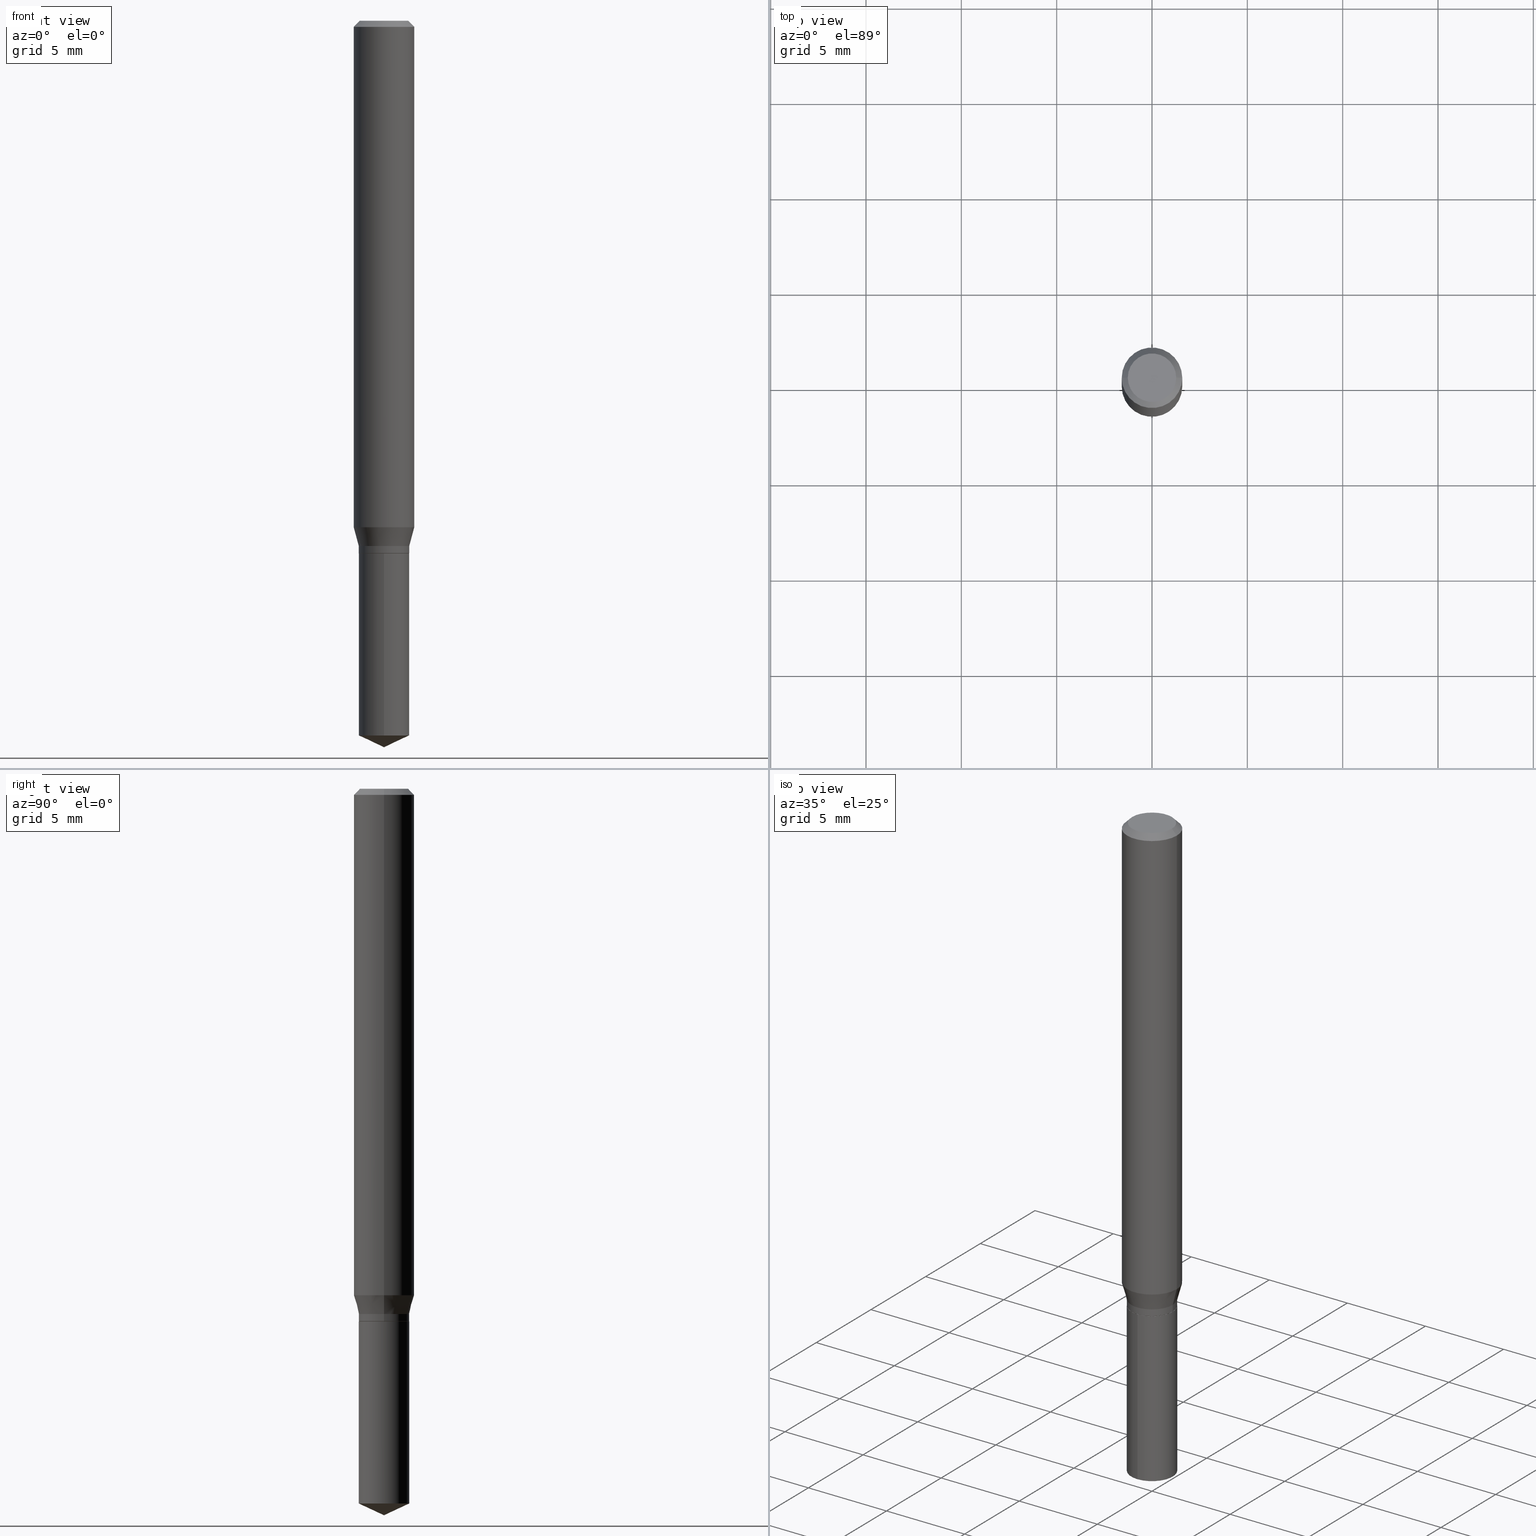
[diagram: canonical four-view strip — front | top / right | iso, engineering-drawing reading convention]
A machine part, canonical four-view strip (front | top / right | iso — engineering-drawing reading convention). The complete STEP part file that produces these views, byte-faithful:
ISO-10303-21;
HEADER;
FILE_DESCRIPTION (( 'STEP AP203' ),
    '1' );
FILE_NAME ('07381.STEP',
    '2024-04-23T20:54:19',
    ( '' ),
    ( '' ),
    'SwSTEP 2.0',
    'SolidWorks 2023',
    '' );
FILE_SCHEMA (( 'CONFIG_CONTROL_DESIGN' ));
ENDSEC;

DATA;
#1 = EDGE_CURVE ( 'NONE', #159, #363, #185, .T. ) ;
#2 = DIRECTION ( 'NONE',  ( -2.445468806185136877E-29, 3.491481338843145188E-15, 1.000000000000000000 ) ) ;
#3 = APPROVAL_PERSON_ORGANIZATION ( #204, #196, #346 ) ;
#4 = DIRECTION ( 'NONE',  ( -1.000000000000000000, 6.982962677686265922E-15, -4.876176775795935793E-29 ) ) ;
#5 = ORIENTED_EDGE ( 'NONE', *, *, #218, .T. ) ;
#6 = PERSON_AND_ORGANIZATION ( #286, #213 ) ;
#7 = CARTESIAN_POINT ( 'NONE',  ( 3.668252923656895710E-29, -5.237152723863177100E-15, -1.500000000000000222 ) ) ;
#8 = CARTESIAN_POINT ( 'NONE',  ( 0.000000000000000000, 0.000000000000000000, 0.000000000000000000 ) ) ;
#9 = AXIS2_PLACEMENT_3D ( 'NONE', #8, #160, #309 ) ;
#10 = ORIENTED_EDGE ( 'NONE', *, *, #23, .T. ) ;
#11 = AXIS2_PLACEMENT_3D ( 'NONE', #260, #301, #4 ) ;
#12 = CARTESIAN_POINT ( 'NONE',  ( -0.05215000000000000191, -3.415614327142614760E-15, -1.084400000000000031 ) ) ;
#13 = VERTEX_POINT ( 'NONE', #176 ) ;
#14 = LINE ( 'NONE', #7, #141 ) ;
#15 = ADVANCED_FACE ( 'NONE', ( #369 ), #424, .T. ) ;
#16 = ORIENTED_EDGE ( 'NONE', *, *, #118, .T. ) ;
#17 = DIRECTION ( 'NONE',  ( -2.445468806185136597E-29, 3.491481338843145583E-15, 1.000000000000000000 ) ) ;
#18 = FACE_OUTER_BOUND ( 'NONE', #429, .T. ) ;
#19 = AXIS2_PLACEMENT_3D ( 'NONE', #209, #100, #441 ) ;
#20 = CARTESIAN_POINT ( 'NONE',  ( -9.260740279983036507E-28, 1.322265303911854087E-13, 37.87007874015748143 ) ) ;
#21 = CALENDAR_DATE ( 2024, 23, 4 ) ;
#22 = ORIENTED_EDGE ( 'NONE', *, *, #384, .F. ) ;
#23 = EDGE_CURVE ( 'NONE', #352, #296, #408, .T. ) ;
#24 = CARTESIAN_POINT ( 'NONE',  ( 3.705480366989282030E-16, 0.05214999999999482549, -1.475682055627217437 ) ) ;
#25 = ORIENTED_EDGE ( 'NONE', *, *, #178, .T. ) ;
#26 = DIRECTION ( 'NONE',  ( -2.445399690415121530E-29, 3.491580316559632610E-15, 1.000000000000000000 ) ) ;
#27 = APPLICATION_CONTEXT ( 'configuration controlled 3d designs of mechanical parts and assemblies' ) ;
#28 = DIRECTION ( 'NONE',  ( -2.445399690415121530E-29, 3.491580316559632610E-15, 1.000000000000000000 ) ) ;
#29 = VECTOR ( 'NONE', #164, 39.37007874015748854 ) ;
#30 = LOCAL_TIME ( 16, 54, 19.00000000000000000, #458 ) ;
#31 = CYLINDRICAL_SURFACE ( 'NONE', #443, 0.06250000000000006939 ) ;
#32 = DIRECTION ( 'NONE',  ( 2.445468806185136597E-29, -3.491481338843145583E-15, -1.000000000000000000 ) ) ;
#33 = ADVANCED_FACE ( 'NONE', ( #18 ), #311, .T. ) ;
#34 = DIRECTION ( 'NONE',  ( -2.445468806185136597E-29, 3.491481338843145583E-15, 1.000000000000000000 ) ) ;
#35 = CARTESIAN_POINT ( 'NONE',  ( 2.651866373427162025E-29, -3.786162363841507612E-15, -1.084400000000000031 ) ) ;
#36 = ADVANCED_FACE ( 'NONE', ( #170 ), #445, .T. ) ;
#37 = DIRECTION ( 'NONE',  ( 1.000000000000000000, -6.982962677686268288E-15, 0.000000000000000000 ) ) ;
#38 = PERSON_AND_ORGANIZATION_ROLE ( 'classification_officer' ) ;
#39 = MECHANICAL_CONTEXT ( 'NONE', #419, 'mechanical' ) ;
#40 = CONICAL_SURFACE ( 'NONE', #228, 0.05164999999999999453, 0.7853981633974141952 ) ;
#41 = CC_DESIGN_SECURITY_CLASSIFICATION ( #246, ( #187 ) ) ;
#42 = EDGE_LOOP ( 'NONE', ( #138, #388, #165, #259 ) ) ;
#43 = PERSON_AND_ORGANIZATION ( #286, #213 ) ;
#44 = CARTESIAN_POINT ( 'NONE',  ( 2.690015686803650369E-29, -3.840629472727460101E-15, -1.100000000000000089 ) ) ;
#45 = ORIENTED_EDGE ( 'NONE', *, *, #114, .F. ) ;
#46 = FACE_OUTER_BOUND ( 'NONE', #253, .T. ) ;
#47 = EDGE_LOOP ( 'NONE', ( #285, #78, #278, #174 ) ) ;
#48 = DIRECTION ( 'NONE',  ( 1.000000000000000000, -6.982962677686269077E-15, 0.000000000000000000 ) ) ;
#49 = CIRCLE ( 'NONE', #394, 0.06250000000000000000 ) ;
#50 = ORIENTED_EDGE ( 'NONE', *, *, #446, .F. ) ;
#51 =( GEOMETRIC_REPRESENTATION_CONTEXT ( 3 ) GLOBAL_UNCERTAINTY_ASSIGNED_CONTEXT ( ( #354 ) ) GLOBAL_UNIT_ASSIGNED_CONTEXT ( ( #269, #341, #265 ) ) REPRESENTATION_CONTEXT ( 'NONE', 'WORKASPACE' ) );
#52 = EDGE_CURVE ( 'NONE', #135, #433, #148, .T. ) ;
#53 = CARTESIAN_POINT ( 'NONE',  ( 0.04999999999999999584, -4.077247707424184705E-16, -1.592040838888913461E-18 ) ) ;
#54 = DIRECTION ( 'NONE',  ( 1.000000000000000000, -6.982962677686268288E-15, 0.000000000000000000 ) ) ;
#55 = ORIENTED_EDGE ( 'NONE', *, *, #333, .F. ) ;
#56 = CYLINDRICAL_SURFACE ( 'NONE', #60, 0.05215000000000000191 ) ;
#57 = ORIENTED_EDGE ( 'NONE', *, *, #178, .F. ) ;
#58 = EDGE_CURVE ( 'NONE', #135, #363, #277, .T. ) ;
#59 = APPROVAL_STATUS ( 'not_yet_approved' ) ;
#60 = AXIS2_PLACEMENT_3D ( 'NONE', #410, #211, #252 ) ;
#61 = DIRECTION ( 'NONE',  ( -6.982962677686266711E-15, -1.000000000000000000, 2.619221470435534958E-15 ) ) ;
#62 = CARTESIAN_POINT ( 'NONE',  ( 2.690015686803650369E-29, -3.840629472727460101E-15, -1.100000000000000089 ) ) ;
#63 = COORDINATED_UNIVERSAL_TIME_OFFSET ( 5, 0, .BEHIND. ) ;
#64 = DIRECTION ( 'NONE',  ( 0.2588190451025216277, 1.565188264969619995E-15, 0.9659258262890679791 ) ) ;
#65 = CARTESIAN_POINT ( 'NONE',  ( 2.690015686803650369E-29, -3.840629472727460101E-15, -1.100000000000000089 ) ) ;
#66 = CARTESIAN_POINT ( 'NONE',  ( 3.608708469328962837E-29, -5.152353543440113099E-15, -1.475682055627217215 ) ) ;
#67 = AXIS2_PLACEMENT_3D ( 'NONE', #65, #95, #274 ) ;
#68 = CIRCLE ( 'NONE', #295, 0.04999999999999999584 ) ;
#69 = CARTESIAN_POINT ( 'NONE',  ( 0.05215000000000000191, -4.203045235699377653E-15, -1.099499999999999922 ) ) ;
#70 = ADVANCED_FACE ( 'NONE', ( #389 ), #212, .T. ) ;
#71 = CARTESIAN_POINT ( 'NONE',  ( 3.893286209682126177E-47, -5.558580879666067980E-33, -1.592040838891559689E-18 ) ) ;
#72 = DIRECTION ( 'NONE',  ( 1.000000000000000000, -6.982962677686268288E-15, 0.000000000000000000 ) ) ;
#73 = EDGE_CURVE ( 'NONE', #327, #247, #207, .T. ) ;
#74 = VECTOR ( 'NONE', #113, 39.37007874015748143 ) ;
#75 = PERSON_AND_ORGANIZATION ( #286, #213 ) ;
#76 = DIRECTION ( 'NONE',  ( -2.445468806185136597E-29, 3.491481338843145583E-15, 1.000000000000000000 ) ) ;
#77 = DIRECTION ( 'NONE',  ( 0.000000000000000000, 0.000000000000000000, 1.000000000000000000 ) ) ;
#78 = ORIENTED_EDGE ( 'NONE', *, *, #73, .T. ) ;
#79 = PERSON_AND_ORGANIZATION ( #286, #213 ) ;
#80 = VECTOR ( 'NONE', #406, 39.37007874015748143 ) ;
#81 = CARTESIAN_POINT ( 'NONE',  ( 2.557405920255531666E-29, -3.651297871326509428E-15, -1.045773274141661879 ) ) ;
#82 = EDGE_CURVE ( 'NONE', #247, #125, #336, .T. ) ;
#83 = AXIS2_PLACEMENT_3D ( 'NONE', #20, #26, #143 ) ;
#84 = EDGE_LOOP ( 'NONE', ( #342, #214, #202, #216 ) ) ;
#85 = DIRECTION ( 'NONE',  ( 1.000000000000000000, -6.982962677686269077E-15, 0.000000000000000000 ) ) ;
#86 = ORIENTED_EDGE ( 'NONE', *, *, #257, .F. ) ;
#87 = DIRECTION ( 'NONE',  ( 1.000000000000000000, -6.982962677686264344E-15, 0.000000000000000000 ) ) ;
#88 = DESIGN_CONTEXT ( 'detailed design', #27, 'design' ) ;
#89 = ORIENTED_EDGE ( 'NONE', *, *, #350, .F. ) ;
#90 = ADVANCED_FACE ( 'NONE', ( #46 ), #403, .T. ) ;
#91 = DIRECTION ( 'NONE',  ( -2.445468806185136597E-29, 3.491481338843145583E-15, 1.000000000000000000 ) ) ;
#92 = CIRCLE ( 'NONE', #482, 0.06250000000000012490 ) ;
#93 = EDGE_LOOP ( 'NONE', ( #86, #468, #323, #314 ) ) ;
#94 = AXIS2_PLACEMENT_3D ( 'NONE', #380, #153, #112 ) ;
#95 = DIRECTION ( 'NONE',  ( -2.445399690415121530E-29, 3.491580316559632610E-15, 1.000000000000000000 ) ) ;
#96 = ORIENTED_EDGE ( 'NONE', *, *, #162, .F. ) ;
#97 = PERSON_AND_ORGANIZATION ( #286, #213 ) ;
#98 = LINE ( 'NONE', #215, #379 ) ;
#99 = DATE_AND_TIME ( #117, #30 ) ;
#100 = DIRECTION ( 'NONE',  ( -2.445468806185136597E-29, 3.491481338843145583E-15, 1.000000000000000000 ) ) ;
#101 = DATE_AND_TIME ( #206, #452 ) ;
#102 = FACE_OUTER_BOUND ( 'NONE', #220, .T. ) ;
#103 = CC_DESIGN_PERSON_AND_ORGANIZATION_ASSIGNMENT ( #75, #231, ( #187 ) ) ;
#104 = CARTESIAN_POINT ( 'NONE',  ( -9.260740279983036507E-28, 1.322265303911854087E-13, 37.87007874015748143 ) ) ;
#105 = AXIS2_PLACEMENT_3D ( 'NONE', #169, #17, #343 ) ;
#106 = CONICAL_SURFACE ( 'NONE', #435, 0.05215000000000000191, 0.2617993877991502960 ) ;
#107 = FACE_OUTER_BOUND ( 'NONE', #233, .T. ) ;
#108 = EDGE_LOOP ( 'NONE', ( #163, #439, #10, #478 ) ) ;
#109 = PLANE ( 'NONE',  #11 ) ;
#110 = EDGE_CURVE ( 'NONE', #251, #352, #418, .T. ) ;
#111 = FACE_OUTER_BOUND ( 'NONE', #431, .T. ) ;
#112 = DIRECTION ( 'NONE',  ( 1.000000000000000000, -6.982962677686266711E-15, 4.876176775795935793E-29 ) ) ;
#113 = DIRECTION ( 'NONE',  ( -2.445468806185136877E-29, 3.491481338843145188E-15, 1.000000000000000000 ) ) ;
#114 = EDGE_CURVE ( 'NONE', #13, #327, #14, .T. ) ;
#115 = DIRECTION ( 'NONE',  ( 1.000000000000000000, -6.982962677686265922E-15, 4.875957971899673662E-29 ) ) ;
#116 = CONICAL_SURFACE ( 'NONE', #132, 0.06250000000000000000, 0.7853981633974449483 ) ;
#117 = CALENDAR_DATE ( 2024, 23, 4 ) ;
#118 = EDGE_CURVE ( 'NONE', #125, #247, #120, .T. ) ;
#119 = ORIENTED_EDGE ( 'NONE', *, *, #1, .F. ) ;
#120 = CIRCLE ( 'NONE', #462, 0.05215000000000000191 ) ;
#121 = CARTESIAN_POINT ( 'NONE',  ( 2.690015686803650369E-29, -3.840629472727460101E-15, -1.100000000000000089 ) ) ;
#122 = ORIENTED_EDGE ( 'NONE', *, *, #73, .F. ) ;
#123 = DIRECTION ( 'NONE',  ( -2.445468806185136597E-29, 3.491481338843145583E-15, 1.000000000000000000 ) ) ;
#124 = ADVANCED_FACE ( 'NONE', ( #239 ), #40, .T. ) ;
#125 = VERTEX_POINT ( 'NONE', #387 ) ;
#126 = DIRECTION ( 'NONE',  ( -0.2588190451025216277, 5.211531920934551831E-15, 0.9659258262890679791 ) ) ;
#127 = ORIENTED_EDGE ( 'NONE', *, *, #52, .F. ) ;
#128 = DIRECTION ( 'NONE',  ( 6.439704144417036664E-15, 0.9063077870366530453, 0.4226182617406927244 ) ) ;
#129 = SHAPE_DEFINITION_REPRESENTATION ( #417, #227 ) ;
#130 = AXIS2_PLACEMENT_3D ( 'NONE', #242, #166, #48 ) ;
#131 = ORIENTED_EDGE ( 'NONE', *, *, #23, .F. ) ;
#132 = AXIS2_PLACEMENT_3D ( 'NONE', #330, #32, #484 ) ;
#133 = APPROVAL_DATE_TIME ( #426, #157 ) ;
#134 = CARTESIAN_POINT ( 'NONE',  ( 3.705480366989190325E-16, 0.05214999999999615776, -1.100000000000000089 ) ) ;
#135 = VERTEX_POINT ( 'NONE', #194 ) ;
#136 = EDGE_CURVE ( 'NONE', #363, #159, #306, .T. ) ;
#137 = CARTESIAN_POINT ( 'NONE',  ( -0.05215000000000000191, -3.441975011250880253E-15, -1.084400000000000031 ) ) ;
#138 = ORIENTED_EDGE ( 'NONE', *, *, #136, .T. ) ;
#139 = FACE_OUTER_BOUND ( 'NONE', #393, .T. ) ;
#140 = ORIENTED_EDGE ( 'NONE', *, *, #172, .F. ) ;
#141 = VECTOR ( 'NONE', #128, 39.37007874015748854 ) ;
#142 = VECTOR ( 'NONE', #375, 39.37007874015748143 ) ;
#143 = DIRECTION ( 'NONE',  ( -6.982962677686267499E-15, -1.000000000000000000, 3.520397390770433360E-15 ) ) ;
#144 = ORIENTED_EDGE ( 'NONE', *, *, #1, .T. ) ;
#145 = EDGE_CURVE ( 'NONE', #291, #296, #244, .T. ) ;
#146 = LINE ( 'NONE', #365, #181 ) ;
#147 = DIRECTION ( 'NONE',  ( -2.445399690415121810E-29, 3.491580316559632610E-15, 1.000000000000000000 ) ) ;
#148 = CIRCLE ( 'NONE', #130, 0.05164999999999999453 ) ;
#149 = AXIS2_PLACEMENT_3D ( 'NONE', #421, #77, #383 ) ;
#150 = ADVANCED_FACE ( 'NONE', ( #467 ), #322, .T. ) ;
#151 = CARTESIAN_POINT ( 'NONE',  ( -0.05164999999999999453, -3.470984922533256947E-15, -1.100000000000000089 ) ) ;
#152 =( LENGTH_UNIT ( ) NAMED_UNIT ( * ) SI_UNIT ( $, .METRE. ) );
#153 = DIRECTION ( 'NONE',  ( -2.445468806185136597E-29, 3.491481338843145583E-15, 1.000000000000000000 ) ) ;
#154 = APPLICATION_PROTOCOL_DEFINITION ( 'international standard', 'config_control_design', 1994, #419 ) ;
#155 = VECTOR ( 'NONE', #177, 39.37007874015748143 ) ;
#156 = AXIS2_PLACEMENT_3D ( 'NONE', #230, #415, #456 ) ;
#157 = APPROVAL ( #59, 'UNSPECIFIED' ) ;
#158 = APPROVAL_STATUS ( 'not_yet_approved' ) ;
#159 = VERTEX_POINT ( 'NONE', #461 ) ;
#160 = DIRECTION ( 'NONE',  ( -2.445468806185136597E-29, 3.491481338843145583E-15, 1.000000000000000000 ) ) ;
#161 = ORIENTED_EDGE ( 'NONE', *, *, #114, .T. ) ;
#162 = EDGE_CURVE ( 'NONE', #433, #135, #348, .T. ) ;
#163 = ORIENTED_EDGE ( 'NONE', *, *, #290, .F. ) ;
#164 = DIRECTION ( 'NONE',  ( 0.7071067811865232589, -2.468850131082003836E-15, 0.7071067811865715536 ) ) ;
#165 = ORIENTED_EDGE ( 'NONE', *, *, #218, .F. ) ;
#166 = DIRECTION ( 'NONE',  ( -2.445468806185136597E-29, 3.491481338843145583E-15, 1.000000000000000000 ) ) ;
#167 = ORIENTED_EDGE ( 'NONE', *, *, #162, .T. ) ;
#168 = APPROVAL_ROLE ( '' ) ;
#169 = CARTESIAN_POINT ( 'NONE',  ( 3.056836007731442729E-31, -4.364351673553962300E-17, -0.01250000000000008916 ) ) ;
#170 = FACE_OUTER_BOUND ( 'NONE', #386, .T. ) ;
#171 = LOCAL_TIME ( 16, 54, 19.00000000000000000, #470 ) ;
#172 = EDGE_CURVE ( 'NONE', #352, #251, #92, .T. ) ;
#173 = DIRECTION ( 'NONE',  ( -0.7071067811865232589, 7.493145998870265808E-15, 0.7071067811865715536 ) ) ;
#174 = ORIENTED_EDGE ( 'NONE', *, *, #266, .F. ) ;
#175 = FACE_OUTER_BOUND ( 'NONE', #466, .T. ) ;
#176 = CARTESIAN_POINT ( 'NONE',  ( 3.668099535622682715E-29, -5.237370474839449507E-15, -1.500000000000000222 ) ) ;
#177 = DIRECTION ( 'NONE',  ( -0.7071067811865451302, 2.468850131082231817E-15, -0.7071067811865499042 ) ) ;
#178 = EDGE_CURVE ( 'NONE', #357, #251, #351, .T. ) ;
#179 = ORIENTED_EDGE ( 'NONE', *, *, #58, .T. ) ;
#180 = CIRCLE ( 'NONE', #372, 0.05215000000000000191 ) ;
#181 = VECTOR ( 'NONE', #362, 39.37007874015748143 ) ;
#182 = DIRECTION ( 'NONE',  ( 1.000000000000000000, -6.982962677686268288E-15, 0.000000000000000000 ) ) ;
#183 = DIRECTION ( 'NONE',  ( -2.445399690415121530E-29, 3.491580316559632610E-15, 1.000000000000000000 ) ) ;
#184 = LINE ( 'NONE', #378, #74 ) ;
#185 = CIRCLE ( 'NONE', #19, 0.05215000000000000191 ) ;
#186 = EDGE_CURVE ( 'NONE', #296, #291, #49, .T. ) ;
#187 = PRODUCT_DEFINITION_FORMATION_WITH_SPECIFIED_SOURCE ( 'ANY', '', #449, .NOT_KNOWN. ) ;
#188 = CYLINDRICAL_SURFACE ( 'NONE', #94, 0.05215000000000000191 ) ;
#189 = CARTESIAN_POINT ( 'NONE',  ( -3.641615036413025703E-16, -0.05215000000000513669, -1.475682055627216993 ) ) ;
#190 = PERSON_AND_ORGANIZATION ( #286, #213 ) ;
#191 = CC_DESIGN_DATE_AND_TIME_ASSIGNMENT ( #101, #402, ( #281 ) ) ;
#192 = LINE ( 'NONE', #340, #142 ) ;
#193 = VERTEX_POINT ( 'NONE', #53 ) ;
#194 = CARTESIAN_POINT ( 'NONE',  ( 0.05164999999999999453, -4.201299495029956149E-15, -1.100000000000000089 ) ) ;
#195 = EDGE_LOOP ( 'NONE', ( #16, #270 ) ) ;
#196 = APPROVAL ( #355, 'UNSPECIFIED' ) ;
#197 = DIRECTION ( 'NONE',  ( -1.000000000000000000, 6.982962677686266711E-15, 0.000000000000000000 ) ) ;
#198 = ORIENTED_EDGE ( 'NONE', *, *, #350, .T. ) ;
#199 = AXIS2_PLACEMENT_3D ( 'NONE', #121, #313, #85 ) ;
#200 = DIRECTION ( 'NONE',  ( -6.982962677686266711E-15, -1.000000000000000000, 2.619221470435534958E-15 ) ) ;
#201 = CIRCLE ( 'NONE', #255, 0.05215000000000000191 ) ;
#202 = ORIENTED_EDGE ( 'NONE', *, *, #136, .F. ) ;
#203 = CARTESIAN_POINT ( 'NONE',  ( 2.651866373427162025E-29, -3.786162363841507612E-15, -1.084400000000000031 ) ) ;
#204 = PERSON_AND_ORGANIZATION ( #286, #213 ) ;
#205 = ORIENTED_EDGE ( 'NONE', *, *, #110, .F. ) ;
#206 = CALENDAR_DATE ( 2024, 23, 4 ) ;
#207 = LINE ( 'NONE', #134, #451 ) ;
#208 = CC_DESIGN_PERSON_AND_ORGANIZATION_ASSIGNMENT ( #97, #423, ( #187 ) ) ;
#209 = CARTESIAN_POINT ( 'NONE',  ( 2.688792952400557567E-29, -3.838883732058038598E-15, -1.099499999999999922 ) ) ;
#210 = MANIFOLD_SOLID_BREP ( 'Body-Move/Copy2[2]', #442 ) ;
#211 = DIRECTION ( 'NONE',  ( -2.445468806185136597E-29, 3.491481338843145583E-15, 1.000000000000000000 ) ) ;
#212 = CONICAL_SURFACE ( 'NONE', #302, 0.06250000000000000000, 0.7853981633974449483 ) ;
#213 = ORGANIZATION ( 'UNSPECIFIED', 'UNSPECIFIED', '' ) ;
#214 = ORIENTED_EDGE ( 'NONE', *, *, #338, .T. ) ;
#215 = CARTESIAN_POINT ( 'NONE',  ( 0.05215000000000000191, -4.150323867482845879E-15, -1.084400000000000031 ) ) ;
#216 = ORIENTED_EDGE ( 'NONE', *, *, #58, .F. ) ;
#217 = PERSON_AND_ORGANIZATION_ROLE ( 'creator' ) ;
#218 = EDGE_CURVE ( 'NONE', #463, #357, #180, .T. ) ;
#219 = CARTESIAN_POINT ( 'NONE',  ( 0.000000000000000000, 0.000000000000000000, 0.000000000000000000 ) ) ;
#220 = EDGE_LOOP ( 'NONE', ( #425, #161, #55 ) ) ;
#221 = LINE ( 'NONE', #486, #229 ) ;
#222 = APPROVAL_PERSON_ORGANIZATION ( #43, #317, #324 ) ;
#223 = CARTESIAN_POINT ( 'NONE',  ( -0.04999999999999999584, 3.709698922520826725E-16, -1.592040838894077649E-18 ) ) ;
#224 = DIRECTION ( 'NONE',  ( -2.445468806185136597E-29, 3.491481338843145583E-15, 1.000000000000000000 ) ) ;
#225 = EDGE_CURVE ( 'NONE', #320, #291, #289, .T. ) ;
#226 = PLANE ( 'NONE',  #156 ) ;
#227 = ADVANCED_BREP_SHAPE_REPRESENTATION ( '07381', ( #376, #210, #149 ), #51 ) ;
#228 = AXIS2_PLACEMENT_3D ( 'NONE', #283, #436, #250 ) ;
#229 = VECTOR ( 'NONE', #147, 39.37007874015748143 ) ;
#230 = CARTESIAN_POINT ( 'NONE',  ( 2.690015686803650369E-29, -3.840629472727460101E-15, -1.100000000000000089 ) ) ;
#231 = PERSON_AND_ORGANIZATION_ROLE ( 'design_supplier' ) ;
#232 = FACE_OUTER_BOUND ( 'NONE', #195, .T. ) ;
#233 = EDGE_LOOP ( 'NONE', ( #288, #198 ) ) ;
#234 = CALENDAR_DATE ( 2024, 23, 4 ) ;
#235 = AXIS2_PLACEMENT_3D ( 'NONE', #454, #76, #37 ) ;
#236 = DIRECTION ( 'NONE',  ( -2.445399690415121530E-29, 3.491580316559632610E-15, 1.000000000000000000 ) ) ;
#237 = ADVANCED_FACE ( 'NONE', ( #102 ), #453, .T. ) ;
#238 = ORIENTED_EDGE ( 'NONE', *, *, #473, .T. ) ;
#239 = FACE_OUTER_BOUND ( 'NONE', #84, .T. ) ;
#240 = APPROVAL_DATE_TIME ( #326, #196 ) ;
#241 = ORIENTED_EDGE ( 'NONE', *, *, #460, .F. ) ;
#242 = CARTESIAN_POINT ( 'NONE',  ( 2.690015686803650369E-29, -3.840629472727460101E-15, -1.100000000000000089 ) ) ;
#243 = ORIENTED_EDGE ( 'NONE', *, *, #480, .T. ) ;
#244 = CIRCLE ( 'NONE', #105, 0.06250000000000000000 ) ;
#245 = CARTESIAN_POINT ( 'NONE',  ( 3.056836007731442729E-31, -4.364351673553962300E-17, -0.01250000000000008916 ) ) ;
#246 = SECURITY_CLASSIFICATION ( '', '', #381 ) ;
#247 = VERTEX_POINT ( 'NONE', #407 ) ;
#248 = APPLICATION_PROTOCOL_DEFINITION ( 'international standard', 'config_control_design', 1994, #27 ) ;
#249 = CC_DESIGN_PERSON_AND_ORGANIZATION_ASSIGNMENT ( #422, #217, ( #281 ) ) ;
#250 = DIRECTION ( 'NONE',  ( 1.000000000000000000, -6.982962677686269077E-15, 0.000000000000000000 ) ) ;
#251 = VERTEX_POINT ( 'NONE', #332 ) ;
#252 = DIRECTION ( 'NONE',  ( 1.000000000000000000, -6.982962677686266711E-15, 4.876176775795935793E-29 ) ) ;
#253 = EDGE_LOOP ( 'NONE', ( #5, #25, #140, #276 ) ) ;
#254 = DIRECTION ( 'NONE',  ( -2.445399690415121530E-29, 3.491580316559632610E-15, 1.000000000000000000 ) ) ;
#255 = AXIS2_PLACEMENT_3D ( 'NONE', #447, #183, #444 ) ;
#256 = DIRECTION ( 'NONE',  ( -6.982962677686267499E-15, -1.000000000000000000, 3.520397390770433360E-15 ) ) ;
#257 = EDGE_CURVE ( 'NONE', #193, #296, #258, .T. ) ;
#258 = LINE ( 'NONE', #293, #321 ) ;
#259 = ORIENTED_EDGE ( 'NONE', *, *, #473, .F. ) ;
#260 = CARTESIAN_POINT ( 'NONE',  ( 1.946643104841063088E-47, -2.779290439833033990E-33, -7.960204194457798443E-19 ) ) ;
#261 = DIRECTION ( 'NONE',  ( 1.000000000000000000, -6.982962677686266711E-15, 4.876176775795935793E-29 ) ) ;
#262 = AXIS2_PLACEMENT_3D ( 'NONE', #335, #263, #450 ) ;
#263 = DIRECTION ( 'NONE',  ( -2.438088387897960049E-29, 3.491481338843145188E-15, 1.000000000000000000 ) ) ;
#264 = EDGE_CURVE ( 'NONE', #463, #352, #98, .T. ) ;
#265 =( NAMED_UNIT ( * ) SI_UNIT ( $, .STERADIAN. ) SOLID_ANGLE_UNIT ( ) );
#266 = EDGE_CURVE ( 'NONE', #476, #125, #221, .T. ) ;
#267 = AXIS2_PLACEMENT_3D ( 'NONE', #432, #397, #54 ) ;
#268 = CARTESIAN_POINT ( 'NONE',  ( 0.05215000000000000191, -4.150323867482845879E-15, -1.084400000000000031 ) ) ;
#269 =( CONVERSION_BASED_UNIT ( 'INCH', #303 ) LENGTH_UNIT ( ) NAMED_UNIT ( #356 ) );
#270 = ORIENTED_EDGE ( 'NONE', *, *, #82, .T. ) ;
#271 = AXIS2_PLACEMENT_3D ( 'NONE', #81, #91, #359 ) ;
#272 = COORDINATED_UNIVERSAL_TIME_OFFSET ( 5, 0, .BEHIND. ) ;
#273 = AXIS2_PLACEMENT_3D ( 'NONE', #405, #374, #61 ) ;
#274 = DIRECTION ( 'NONE',  ( -6.982962677686266711E-15, -1.000000000000000000, 2.619221470435534958E-15 ) ) ;
#275 = ADVANCED_FACE ( 'NONE', ( #175 ), #56, .T. ) ;
#276 = ORIENTED_EDGE ( 'NONE', *, *, #264, .F. ) ;
#277 = LINE ( 'NONE', #287, #29 ) ;
#278 = ORIENTED_EDGE ( 'NONE', *, *, #118, .F. ) ;
#279 = DIRECTION ( 'NONE',  ( -2.445468806185136597E-29, 3.491481338843145583E-15, 1.000000000000000000 ) ) ;
#280 = EDGE_LOOP ( 'NONE', ( #45, #243, #22 ) ) ;
#281 = PRODUCT_DEFINITION ( 'UNKNOWN', '', #187, #88 ) ;
#282 = CLOSED_SHELL ( 'NONE', ( #364, #237, #15, #36, #455 ) ) ;
#283 = CARTESIAN_POINT ( 'NONE',  ( 2.690015686803650369E-29, -3.840629472727460101E-15, -1.100000000000000089 ) ) ;
#284 = CC_DESIGN_APPROVAL ( #196, ( #246 ) ) ;
#285 = ORIENTED_EDGE ( 'NONE', *, *, #333, .T. ) ;
#286 = PERSON ( 'UNSPECIFIED', 'UNSPECIFIED', 'UNSPECIFIED', ('UNSPECIFIED'), ('UNSPECIFIED'), ('UNSPECIFIED') ) ;
#287 = CARTESIAN_POINT ( 'NONE',  ( 0.05164999999999999453, -4.201299495029956149E-15, -1.100000000000000089 ) ) ;
#288 = ORIENTED_EDGE ( 'NONE', *, *, #459, .T. ) ;
#289 = LINE ( 'NONE', #399, #155 ) ;
#290 = EDGE_CURVE ( 'NONE', #251, #291, #146, .T. ) ;
#291 = VERTEX_POINT ( 'NONE', #297 ) ;
#292 = APPROVAL_DATE_TIME ( #361, #317 ) ;
#293 = CARTESIAN_POINT ( 'NONE',  ( 0.06250000000000000000, -4.724246415962603826E-16, -0.01250000000000008916 ) ) ;
#294 = AXIS2_PLACEMENT_3D ( 'NONE', #62, #366, #329 ) ;
#295 = AXIS2_PLACEMENT_3D ( 'NONE', #71, #224, #115 ) ;
#296 = VERTEX_POINT ( 'NONE', #412 ) ;
#297 = CARTESIAN_POINT ( 'NONE',  ( -0.06250000000000000000, -1.403381484180960498E-15, -0.01250000000000008916 ) ) ;
#298 = EDGE_LOOP ( 'NONE', ( #127, #96 ) ) ;
#299 = CARTESIAN_POINT ( 'NONE',  ( -0.05164999999999999453, -3.473634149707368542E-15, -1.100000000000000089 ) ) ;
#300 = CC_DESIGN_DATE_AND_TIME_ASSIGNMENT ( #99, #316, ( #246 ) ) ;
#301 = DIRECTION ( 'NONE',  ( 2.438088387897960049E-29, -3.491481338843145188E-15, -1.000000000000000000 ) ) ;
#302 = AXIS2_PLACEMENT_3D ( 'NONE', #392, #427, #197 ) ;
#303 = LENGTH_MEASURE_WITH_UNIT ( LENGTH_MEASURE( 0.02539999999999999897 ), #152 );
#304 = LINE ( 'NONE', #382, #337 ) ;
#305 = FACE_OUTER_BOUND ( 'NONE', #298, .T. ) ;
#306 = CIRCLE ( 'NONE', #267, 0.05215000000000000191 ) ;
#307 = CIRCLE ( 'NONE', #483, 0.04999999999999999584 ) ;
#308 = EDGE_LOOP ( 'NONE', ( #57, #318, #401, #205 ) ) ;
#309 = DIRECTION ( 'NONE',  ( 1.000000000000000000, -6.982962677686266711E-15, 4.876176775795935793E-29 ) ) ;
#310 = ORIENTED_EDGE ( 'NONE', *, *, #290, .T. ) ;
#311 = CONICAL_SURFACE ( 'NONE', #294, 0.05164999999999999453, 0.7853981633974141952 ) ;
#312 = AXIS2_PLACEMENT_3D ( 'NONE', #66, #254, #325 ) ;
#313 = DIRECTION ( 'NONE',  ( -2.445468806185136597E-29, 3.491481338843145583E-15, 1.000000000000000000 ) ) ;
#314 = ORIENTED_EDGE ( 'NONE', *, *, #145, .T. ) ;
#315 = DIRECTION ( 'NONE',  ( -2.445399690415121530E-29, 3.491580316559632610E-15, 1.000000000000000000 ) ) ;
#316 = DATE_TIME_ROLE ( 'classification_date' ) ;
#317 = APPROVAL ( #158, 'UNSPECIFIED' ) ;
#318 = ORIENTED_EDGE ( 'NONE', *, *, #446, .T. ) ;
#319 = DIRECTION ( 'NONE',  ( -6.982962677686266711E-15, -1.000000000000000000, 2.619221470435534958E-15 ) ) ;
#320 = VERTEX_POINT ( 'NONE', #223 ) ;
#321 = VECTOR ( 'NONE', #438, 39.37007874015748143 ) ;
#322 = CYLINDRICAL_SURFACE ( 'NONE', #9, 0.06250000000000006939 ) ;
#323 = ORIENTED_EDGE ( 'NONE', *, *, #225, .T. ) ;
#324 = APPROVAL_ROLE ( '' ) ;
#325 = DIRECTION ( 'NONE',  ( -6.982962677686266711E-15, -1.000000000000000000, 5.238442940871069917E-15 ) ) ;
#326 = DATE_AND_TIME ( #21, #171 ) ;
#327 = VERTEX_POINT ( 'NONE', #24 ) ;
#328 = DIRECTION ( 'NONE',  ( -2.445468806185136597E-29, 3.491481338843145583E-15, 1.000000000000000000 ) ) ;
#329 = DIRECTION ( 'NONE',  ( 1.000000000000000000, -6.982962677686269077E-15, 0.000000000000000000 ) ) ;
#330 = CARTESIAN_POINT ( 'NONE',  ( 3.056836007731442729E-31, -4.364351673553962300E-17, -0.01250000000000008916 ) ) ;
#331 = ORIENTED_EDGE ( 'NONE', *, *, #225, .F. ) ;
#332 = CARTESIAN_POINT ( 'NONE',  ( -0.06250000000000012490, -3.207208661476446023E-15, -1.045773274141661879 ) ) ;
#333 = EDGE_CURVE ( 'NONE', #476, #327, #489, .T. ) ;
#334 = LINE ( 'NONE', #299, #349 ) ;
#335 = CARTESIAN_POINT ( 'NONE',  ( 2.690015686803650369E-29, -3.840629472727460101E-15, -1.100000000000000089 ) ) ;
#336 = CIRCLE ( 'NONE', #474, 0.05215000000000000191 ) ;
#337 = VECTOR ( 'NONE', #2, 39.37007874015748143 ) ;
#338 = EDGE_CURVE ( 'NONE', #433, #159, #334, .T. ) ;
#339 = FACE_OUTER_BOUND ( 'NONE', #42, .T. ) ;
#340 = CARTESIAN_POINT ( 'NONE',  ( 3.668099535622682155E-29, -5.237370474839448718E-15, -1.500000000000000222 ) ) ;
#341 =( NAMED_UNIT ( * ) PLANE_ANGLE_UNIT ( ) SI_UNIT ( $, .RADIAN. ) );
#342 = ORIENTED_EDGE ( 'NONE', *, *, #52, .T. ) ;
#343 = DIRECTION ( 'NONE',  ( 1.000000000000000000, -6.982962677686266711E-15, 0.000000000000000000 ) ) ;
#344 = ORIENTED_EDGE ( 'NONE', *, *, #186, .F. ) ;
#345 = DIRECTION ( 'NONE',  ( -2.445399690415121810E-29, 3.491580316559632610E-15, 1.000000000000000000 ) ) ;
#346 = APPROVAL_ROLE ( '' ) ;
#347 = ORIENTED_EDGE ( 'NONE', *, *, #186, .T. ) ;
#348 = CIRCLE ( 'NONE', #199, 0.05164999999999999453 ) ;
#349 = VECTOR ( 'NONE', #173, 39.37007874015748854 ) ;
#350 = EDGE_CURVE ( 'NONE', #193, #320, #307, .T. ) ;
#351 = LINE ( 'NONE', #12, #434 ) ;
#352 = VERTEX_POINT ( 'NONE', #370 ) ;
#353 = CARTESIAN_POINT ( 'NONE',  ( 2.690015686803650369E-29, -3.840629472727460101E-15, -1.100000000000000089 ) ) ;
#354 = UNCERTAINTY_MEASURE_WITH_UNIT (LENGTH_MEASURE( 1.000000000000000082E-05 ), #269, 'distance_accuracy_value', 'NONE');
#355 = APPROVAL_STATUS ( 'not_yet_approved' ) ;
#356 = DIMENSIONAL_EXPONENTS ( 1.000000000000000000, 0.000000000000000000, 0.000000000000000000, 0.000000000000000000, 0.000000000000000000, 0.000000000000000000, 0.000000000000000000 ) ;
#357 = VERTEX_POINT ( 'NONE', #137 ) ;
#358 = COORDINATED_UNIVERSAL_TIME_OFFSET ( 5, 0, .BEHIND. ) ;
#359 = DIRECTION ( 'NONE',  ( 1.000000000000000000, -6.982962677686264344E-15, 0.000000000000000000 ) ) ;
#360 = CARTESIAN_POINT ( 'NONE',  ( 0.06250000000000006939, -4.364351673553921624E-16, 3.047610484872463374E-30 ) ) ;
#361 = DATE_AND_TIME ( #367, #395 ) ;
#362 = DIRECTION ( 'NONE',  ( -2.445468806185136877E-29, 3.491481338843145188E-15, 1.000000000000000000 ) ) ;
#363 = VERTEX_POINT ( 'NONE', #69 ) ;
#364 = ADVANCED_FACE ( 'NONE', ( #487 ), #440, .T. ) ;
#365 = CARTESIAN_POINT ( 'NONE',  ( -0.06250000000000006939, 4.440892098500631092E-16, -3.074334431409319267E-30 ) ) ;
#366 = DIRECTION ( 'NONE',  ( -2.445468806185136597E-29, 3.491481338843145583E-15, 1.000000000000000000 ) ) ;
#367 = CALENDAR_DATE ( 2024, 23, 4 ) ;
#368 = DIRECTION ( 'NONE',  ( -2.445468806185136597E-29, 3.491481338843145583E-15, 1.000000000000000000 ) ) ;
#369 = FACE_OUTER_BOUND ( 'NONE', #280, .T. ) ;
#370 = CARTESIAN_POINT ( 'NONE',  ( 0.06250000000000012490, -4.087733038681901886E-15, -1.045773274141661879 ) ) ;
#371 = ADVANCED_FACE ( 'NONE', ( #111 ), #31, .T. ) ;
#372 = AXIS2_PLACEMENT_3D ( 'NONE', #203, #368, #182 ) ;
#373 = CIRCLE ( 'NONE', #235, 0.05215000000000000191 ) ;
#374 = DIRECTION ( 'NONE',  ( -2.445399690415121530E-29, 3.491580316559632610E-15, 1.000000000000000000 ) ) ;
#375 = DIRECTION ( 'NONE',  ( -6.328713451373382000E-15, -0.9063077870366501587, 0.4226182617406989972 ) ) ;
#376 = MANIFOLD_SOLID_BREP ( 'Body-Move/Copy2[1]', #282 ) ;
#377 = ADVANCED_FACE ( 'NONE', ( #139 ), #116, .T. ) ;
#378 = CARTESIAN_POINT ( 'NONE',  ( -0.05215000000000000191, 3.705480366988922605E-16, -2.565224649567933448E-30 ) ) ;
#379 = VECTOR ( 'NONE', #64, 39.37007874015748143 ) ;
#380 = CARTESIAN_POINT ( 'NONE',  ( 0.000000000000000000, 0.000000000000000000, 0.000000000000000000 ) ) ;
#381 = SECURITY_CLASSIFICATION_LEVEL ( 'unclassified' ) ;
#382 = CARTESIAN_POINT ( 'NONE',  ( 0.05215000000000000191, -3.641615036413388086E-16, 2.542926188577580569E-30 ) ) ;
#383 = DIRECTION ( 'NONE',  ( 1.000000000000000000, 0.000000000000000000, 0.000000000000000000 ) ) ;
#384 = EDGE_CURVE ( 'NONE', #327, #476, #201, .T. ) ;
#385 = AXIS2_PLACEMENT_3D ( 'NONE', #104, #28, #256 ) ;
#386 = EDGE_LOOP ( 'NONE', ( #122, #485, #390, #471 ) ) ;
#387 = CARTESIAN_POINT ( 'NONE',  ( -3.641615036413119380E-16, -0.05215000000000383912, -1.099999999999999867 ) ) ;
#388 = ORIENTED_EDGE ( 'NONE', *, *, #460, .T. ) ;
#389 = FACE_OUTER_BOUND ( 'NONE', #93, .T. ) ;
#390 = ORIENTED_EDGE ( 'NONE', *, *, #266, .T. ) ;
#391 = ADVANCED_FACE ( 'NONE', ( #107 ), #109, .F. ) ;
#392 = CARTESIAN_POINT ( 'NONE',  ( 3.056836007731442729E-31, -4.364351673553962300E-17, -0.01250000000000008916 ) ) ;
#393 = EDGE_LOOP ( 'NONE', ( #89, #398, #347, #331 ) ) ;
#394 = AXIS2_PLACEMENT_3D ( 'NONE', #245, #279, #396 ) ;
#395 = LOCAL_TIME ( 16, 54, 19.00000000000000000, #63 ) ;
#396 = DIRECTION ( 'NONE',  ( 1.000000000000000000, -6.982962677686266711E-15, 0.000000000000000000 ) ) ;
#397 = DIRECTION ( 'NONE',  ( -2.445468806185136597E-29, 3.491481338843145583E-15, 1.000000000000000000 ) ) ;
#398 = ORIENTED_EDGE ( 'NONE', *, *, #257, .T. ) ;
#399 = CARTESIAN_POINT ( 'NONE',  ( -0.06250000000000000000, 3.927916506198520587E-16, -0.01250000000000008916 ) ) ;
#400 = CC_DESIGN_PERSON_AND_ORGANIZATION_ASSIGNMENT ( #190, #38, ( #246 ) ) ;
#401 = ORIENTED_EDGE ( 'NONE', *, *, #264, .T. ) ;
#402 = DATE_TIME_ROLE ( 'creation_date' ) ;
#403 = CONICAL_SURFACE ( 'NONE', #413, 0.05215000000000000191, 0.2617993877991502960 ) ;
#404 = CC_DESIGN_APPROVAL ( #317, ( #281 ) ) ;
#405 = CARTESIAN_POINT ( 'NONE',  ( 2.690015686803650369E-29, -3.840629472727460101E-15, -1.100000000000000089 ) ) ;
#406 = DIRECTION ( 'NONE',  ( -2.445468806185136877E-29, 3.491481338843145188E-15, 1.000000000000000000 ) ) ;
#407 = CARTESIAN_POINT ( 'NONE',  ( 3.705480366989283509E-16, 0.05214999999999615776, -1.100000000000000089 ) ) ;
#408 = LINE ( 'NONE', #360, #80 ) ;
#409 = ADVANCED_FACE ( 'NONE', ( #305 ), #416, .F. ) ;
#410 = CARTESIAN_POINT ( 'NONE',  ( 0.000000000000000000, 0.000000000000000000, 0.000000000000000000 ) ) ;
#411 = PRODUCT_RELATED_PRODUCT_CATEGORY ( 'detail', '', ( #449 ) ) ;
#412 = CARTESIAN_POINT ( 'NONE',  ( 0.06250000000000000000, -4.800786840909313294E-16, -0.01250000000000008916 ) ) ;
#413 = AXIS2_PLACEMENT_3D ( 'NONE', #475, #469, #430 ) ;
#414 = LOCAL_TIME ( 16, 54, 19.00000000000000000, #272 ) ;
#415 = DIRECTION ( 'NONE',  ( 2.445399690415121250E-29, -3.491580316559632610E-15, -1.000000000000000000 ) ) ;
#416 = PLANE ( 'NONE',  #262 ) ;
#417 = PRODUCT_DEFINITION_SHAPE ( 'NONE', 'NONE',  #281 ) ;
#418 = CIRCLE ( 'NONE', #271, 0.06250000000000012490 ) ;
#419 = APPLICATION_CONTEXT ( 'configuration controlled 3d designs of mechanical parts and assemblies' ) ;
#420 = ADVANCED_FACE ( 'NONE', ( #339 ), #188, .T. ) ;
#421 = CARTESIAN_POINT ( 'NONE',  ( 0.000000000000000000, 0.000000000000000000, 0.000000000000000000 ) ) ;
#422 = PERSON_AND_ORGANIZATION ( #286, #213 ) ;
#423 = PERSON_AND_ORGANIZATION_ROLE ( 'creator' ) ;
#424 = CONICAL_SURFACE ( 'NONE', #385, 84.42940631927483253, 1.134464013796318227 ) ;
#425 = ORIENTED_EDGE ( 'NONE', *, *, #480, .F. ) ;
#426 = DATE_AND_TIME ( #234, #414 ) ;
#427 = DIRECTION ( 'NONE',  ( 2.445468806185136597E-29, -3.491481338843145583E-15, -1.000000000000000000 ) ) ;
#428 = ADVANCED_FACE ( 'NONE', ( #490 ), #106, .T. ) ;
#429 = EDGE_LOOP ( 'NONE', ( #481, #167, #179, #119 ) ) ;
#430 = DIRECTION ( 'NONE',  ( 1.000000000000000000, -6.982962677686268288E-15, 0.000000000000000000 ) ) ;
#431 = EDGE_LOOP ( 'NONE', ( #437, #310, #344, #131 ) ) ;
#432 = CARTESIAN_POINT ( 'NONE',  ( 2.688792952400557567E-29, -3.838883732058038598E-15, -1.099499999999999922 ) ) ;
#433 = VERTEX_POINT ( 'NONE', #151 ) ;
#434 = VECTOR ( 'NONE', #126, 39.37007874015748143 ) ;
#435 = AXIS2_PLACEMENT_3D ( 'NONE', #35, #34, #72 ) ;
#436 = DIRECTION ( 'NONE',  ( -2.445468806185136597E-29, 3.491481338843145583E-15, 1.000000000000000000 ) ) ;
#437 = ORIENTED_EDGE ( 'NONE', *, *, #172, .T. ) ;
#438 = DIRECTION ( 'NONE',  ( 0.7071067811865451302, -7.319954787623248157E-15, -0.7071067811865499042 ) ) ;
#439 = ORIENTED_EDGE ( 'NONE', *, *, #110, .T. ) ;
#440 = CYLINDRICAL_SURFACE ( 'NONE', #273, 0.05215000000000000191 ) ;
#441 = DIRECTION ( 'NONE',  ( 1.000000000000000000, -6.982962677686268288E-15, 0.000000000000000000 ) ) ;
#442 = CLOSED_SHELL ( 'NONE', ( #124, #377, #371, #90, #420, #275, #428, #150, #70, #391, #409, #33 ) ) ;
#443 = AXIS2_PLACEMENT_3D ( 'NONE', #219, #479, #261 ) ;
#444 = DIRECTION ( 'NONE',  ( -6.982962677686266711E-15, -1.000000000000000000, 5.238442940871069917E-15 ) ) ;
#445 = CYLINDRICAL_SURFACE ( 'NONE', #67, 0.05215000000000000191 ) ;
#446 = EDGE_CURVE ( 'NONE', #357, #463, #373, .T. ) ;
#447 = CARTESIAN_POINT ( 'NONE',  ( 3.608708469328962837E-29, -5.152353543440113099E-15, -1.475682055627217215 ) ) ;
#448 = DIRECTION ( 'NONE',  ( 1.000000000000000000, -6.982962677686265922E-15, 4.875957971899673662E-29 ) ) ;
#449 = PRODUCT ( '07381', '07381', '', ( #39 ) ) ;
#450 = DIRECTION ( 'NONE',  ( 1.000000000000000000, -6.982962677686265922E-15, 4.876176775795935793E-29 ) ) ;
#451 = VECTOR ( 'NONE', #345, 39.37007874015748143 ) ;
#452 = LOCAL_TIME ( 16, 54, 19.00000000000000000, #358 ) ;
#453 = CONICAL_SURFACE ( 'NONE', #83, 84.42940631927483253, 1.134464013796318227 ) ;
#454 = CARTESIAN_POINT ( 'NONE',  ( 2.651866373427162025E-29, -3.786162363841507612E-15, -1.084400000000000031 ) ) ;
#455 = ADVANCED_FACE ( 'NONE', ( #232 ), #226, .F. ) ;
#456 = DIRECTION ( 'NONE',  ( 6.982962677686265922E-15, 1.000000000000000000, -3.491580316559632610E-15 ) ) ;
#457 = CC_DESIGN_APPROVAL ( #157, ( #187 ) ) ;
#458 = COORDINATED_UNIVERSAL_TIME_OFFSET ( 5, 0, .BEHIND. ) ;
#459 = EDGE_CURVE ( 'NONE', #320, #193, #68, .T. ) ;
#460 = EDGE_CURVE ( 'NONE', #159, #357, #184, .T. ) ;
#461 = CARTESIAN_POINT ( 'NONE',  ( -0.05215000000000000191, -3.441975011250880253E-15, -1.099499999999999922 ) ) ;
#462 = AXIS2_PLACEMENT_3D ( 'NONE', #44, #236, #200 ) ;
#463 = VERTEX_POINT ( 'NONE', #268 ) ;
#464 = APPROVAL_PERSON_ORGANIZATION ( #79, #157, #168 ) ;
#465 = CARTESIAN_POINT ( 'NONE',  ( 2.557405920255531666E-29, -3.651297871326509428E-15, -1.045773274141661879 ) ) ;
#466 = EDGE_LOOP ( 'NONE', ( #241, #144, #238, #50 ) ) ;
#467 = FACE_OUTER_BOUND ( 'NONE', #108, .T. ) ;
#468 = ORIENTED_EDGE ( 'NONE', *, *, #459, .F. ) ;
#469 = DIRECTION ( 'NONE',  ( -2.445468806185136597E-29, 3.491481338843145583E-15, 1.000000000000000000 ) ) ;
#470 = COORDINATED_UNIVERSAL_TIME_OFFSET ( 5, 0, .BEHIND. ) ;
#471 = ORIENTED_EDGE ( 'NONE', *, *, #82, .F. ) ;
#472 = PERSON_AND_ORGANIZATION_ROLE ( 'design_owner' ) ;
#473 = EDGE_CURVE ( 'NONE', #363, #463, #304, .T. ) ;
#474 = AXIS2_PLACEMENT_3D ( 'NONE', #353, #315, #319 ) ;
#475 = CARTESIAN_POINT ( 'NONE',  ( 2.651866373427162025E-29, -3.786162363841507612E-15, -1.084400000000000031 ) ) ;
#476 = VERTEX_POINT ( 'NONE', #189 ) ;
#477 = CARTESIAN_POINT ( 'NONE',  ( 3.893286209682126177E-47, -5.558580879666067980E-33, -1.592040838891559689E-18 ) ) ;
#478 = ORIENTED_EDGE ( 'NONE', *, *, #145, .F. ) ;
#479 = DIRECTION ( 'NONE',  ( -2.445468806185136597E-29, 3.491481338843145583E-15, 1.000000000000000000 ) ) ;
#480 = EDGE_CURVE ( 'NONE', #13, #476, #192, .T. ) ;
#481 = ORIENTED_EDGE ( 'NONE', *, *, #338, .F. ) ;
#482 = AXIS2_PLACEMENT_3D ( 'NONE', #465, #123, #87 ) ;
#483 = AXIS2_PLACEMENT_3D ( 'NONE', #477, #328, #448 ) ;
#484 = DIRECTION ( 'NONE',  ( -1.000000000000000000, 6.982962677686266711E-15, 0.000000000000000000 ) ) ;
#485 = ORIENTED_EDGE ( 'NONE', *, *, #384, .T. ) ;
#486 = CARTESIAN_POINT ( 'NONE',  ( -3.641615036413119380E-16, -0.05215000000000383912, -1.099999999999999867 ) ) ;
#487 = FACE_OUTER_BOUND ( 'NONE', #47, .T. ) ;
#488 = CC_DESIGN_PERSON_AND_ORGANIZATION_ASSIGNMENT ( #6, #472, ( #449 ) ) ;
#489 = CIRCLE ( 'NONE', #312, 0.05215000000000000191 ) ;
#490 = FACE_OUTER_BOUND ( 'NONE', #308, .T. ) ;
ENDSEC;
END-ISO-10303-21;
